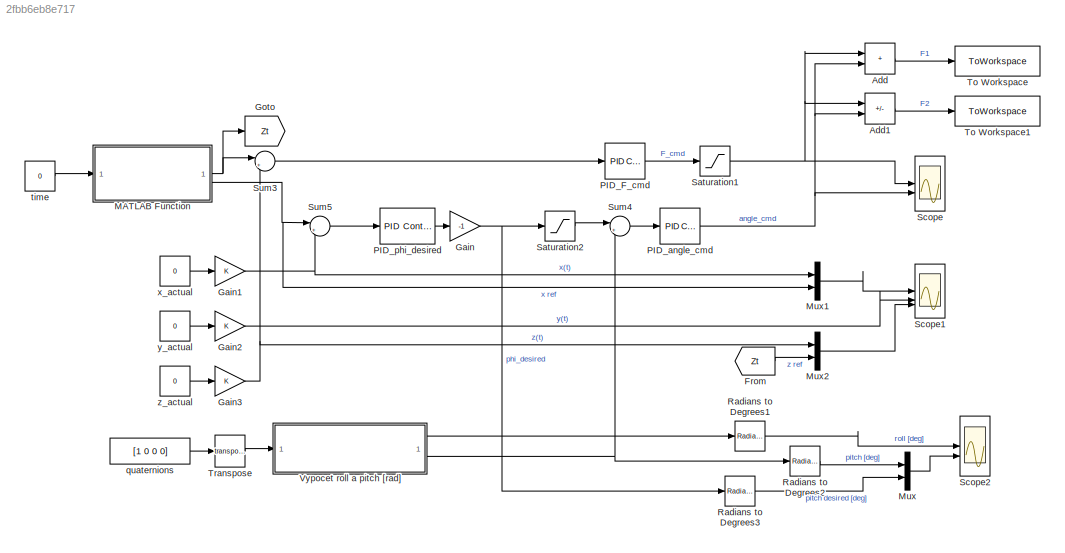
MODEL slx_2fbb6eb8e717
KIND model
CONFIG AbsTol = auto
CONFIG EnableMultiTasking = off
CONFIG FixedStep = 0.05
CONFIG MaxStep = auto
CONFIG MinStep = auto
CONFIG RelTol = 1e-3
CONFIG SampleTimeConstraint = Unconstrained
CONFIG SolverName = ode4
CONFIG StartTime = 0.0
CONFIG StopTime = 50
BLOCK [Sum] Add
  IconShape = rectangular
BLOCK [Sum] Add1
  IconShape = rectangular
  Inputs = +-
BLOCK [From] From
  GotoTag = Zt
BLOCK [Gain] Gain
  Gain = -1
BLOCK [Gain] Gain1
BLOCK [Gain] Gain2
BLOCK [Gain] Gain3
BLOCK [Goto] Goto
  GotoTag = Zt
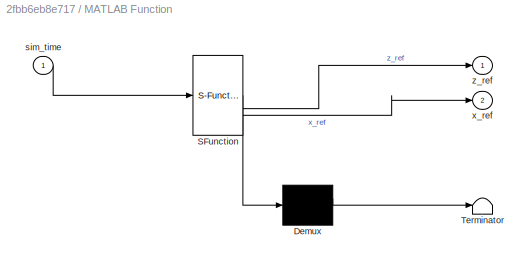
BLOCK [SubSystem] MATLAB Function
  ErrorFcn = Stateflow.Translate.translate
  PermitHierarchicalResolution = ExplicitOnly
  SFBlockType = MATLAB Function
  TreatAsAtomicUnit = on
BLOCK [Demux] MATLAB Function/ Demux 
  Outputs = 1
BLOCK [S-Function] MATLAB Function/ SFunction 
  EnableBusSupport = on
  FunctionName = sf_sfun
  PortCounts = [1 3]
  SFcnIsStateOwnerBlock = off
  SFunctionDeploymentMode = off
  Tag = Stateflow S-Function 1
BLOCK [Terminator] MATLAB Function/ Terminator 
BLOCK [Inport] MATLAB Function/sim_time
BLOCK [Outport] MATLAB Function/x_ref
  Port = 2
BLOCK [Outport] MATLAB Function/z_ref
BLOCK [Mux] Mux
  DisplayOption = bar
  Inputs = 2
BLOCK [Mux] Mux1
  DisplayOption = bar
  Inputs = 2
BLOCK [Mux] Mux2
  DisplayOption = bar
  Inputs = 2
BLOCK [Reference] PID_F_cmd  REF=slpidlib/PID Controller
  LibrarySourceBlock = simulink/Continuous/PID Controller
  SourceBlock = slpidlib/PID Controller
  SourceType = PID 1dof
BLOCK [Reference] PID_angle_cmd  REF=slpidlib/PID Controller
  LibrarySourceBlock = simulink/Continuous/PID Controller
  SourceBlock = slpidlib/PID Controller
  SourceType = PID 1dof
BLOCK [Reference] PID_phi_desired  REF=slpidlib/PID Controller
  LibrarySourceBlock = simulink/Continuous/PID Controller
  SourceBlock = slpidlib/PID Controller
  SourceType = PID 1dof
BLOCK [Reference] Radians to Degrees1  REF=simulink_extras/Transformations/Radians
to Degrees
  SourceBlock = simulink_extras/Transformations/Radians\nto Degrees
  SourceType = RadiansToDegrees
BLOCK [Reference] Radians to Degrees2  REF=simulink_extras/Transformations/Radians
to Degrees
  SourceBlock = simulink_extras/Transformations/Radians\nto Degrees
  SourceType = RadiansToDegrees
BLOCK [Reference] Radians to Degrees3  REF=simulink_extras/Transformations/Radians
to Degrees
  SourceBlock = simulink_extras/Transformations/Radians\nto Degrees
  SourceType = RadiansToDegrees
BLOCK [Saturate] Saturation1
  LowerLimit = 0
  UpperLimit = 20
BLOCK [Saturate] Saturation2
  LowerLimit = -pi/2
  UpperLimit = pi/2
BLOCK [Scope] Scope
  Floating = off
  NumInputPorts = 2
  ScopeSpecificationString = Simulink.scopes.TimeScopeBlockCfg('CurrentConfiguration', extmgr.ConfigurationSet(extmgr.Configuration('Core','General UI',true),extmgr.Configuration('Core','Source UI',true),extmgr.Configuration('Sources','WiredSimulink',true,'DataLoggingVariableName','ScopeData1'),extmgr.Configuration('Visuals','Time Domain',true,'SerializedDisplays',{struct('MinYLimReal','-8.92897','MaxYLimReal','23.21433','YLa...<+1658ch>
BLOCK [Scope] Scope1
  Floating = off
  NumInputPorts = 3
  ScopeSpecificationString = Simulink.scopes.TimeScopeBlockCfg('CurrentConfiguration', extmgr.ConfigurationSet(extmgr.Configuration('Core','General UI',true),extmgr.Configuration('Core','Source UI',true),extmgr.Configuration('Sources','WiredSimulink',true,'DataLoggingVariableName','ScopeData1'),extmgr.Configuration('Visuals','Time Domain',true,'SerializedDisplays',{struct('MinYLimReal','-7.52724','MaxYLimReal','17.74514','YLa...<+3380ch>
BLOCK [Scope] Scope2
  Floating = off
  NumInputPorts = 2
  ScopeSpecificationString = Simulink.scopes.TimeScopeBlockCfg('CurrentConfiguration', extmgr.ConfigurationSet(extmgr.Configuration('Core','General UI',true),extmgr.Configuration('Core','Source UI',true),extmgr.Configuration('Sources','WiredSimulink',true,'DataLoggingVariableName','ScopeData2'),extmgr.Configuration('Visuals','Time Domain',true,'SerializedDisplays',{struct('MinYLimReal','-140.53645','MaxYLimReal','102.00165','...<+1627ch>
BLOCK [Sum] Sum3
  Inputs = |+-
BLOCK [Sum] Sum4
  Inputs = |+-
BLOCK [Sum] Sum5
  Inputs = |+-
BLOCK [ToWorkspace] To Workspace
  MaxDataPoints = inf
  SampleTime = -1
  SaveFormat = Timeseries
  VariableName = F1
BLOCK [ToWorkspace] To Workspace1
  MaxDataPoints = inf
  SampleTime = -1
  SaveFormat = Timeseries
  VariableName = F2
BLOCK [Math] Transpose
  Operator = transpose
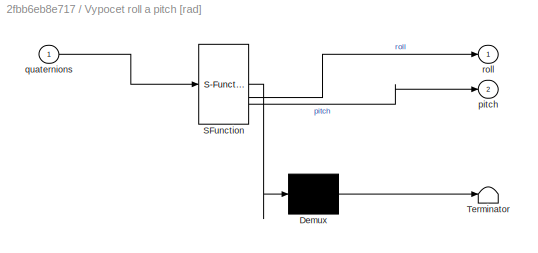
BLOCK [SubSystem] Vypocet roll a pitch [rad]
  ErrorFcn = Stateflow.Translate.translate
  PermitHierarchicalResolution = ExplicitOnly
  SFBlockType = MATLAB Function
  TreatAsAtomicUnit = on
BLOCK [Demux] Vypocet roll a pitch [rad]/ Demux 
  Outputs = 1
BLOCK [S-Function] Vypocet roll a pitch [rad]/ SFunction 
  EnableBusSupport = on
  FunctionName = sf_sfun
  PortCounts = [1 3]
  SFcnIsStateOwnerBlock = off
  SFunctionDeploymentMode = off
  Tag = Stateflow S-Function 2
BLOCK [Terminator] Vypocet roll a pitch [rad]/ Terminator 
BLOCK [Outport] Vypocet roll a pitch [rad]/pitch
  Port = 2
BLOCK [Inport] Vypocet roll a pitch [rad]/quaternions
BLOCK [Outport] Vypocet roll a pitch [rad]/roll
BLOCK [Constant] quaternions
  Value = [1 0 0 0]
BLOCK [Constant] time
  Value = 0
BLOCK [Constant] x_actual
  Value = 0
BLOCK [Constant] y_actual
  Value = 0
BLOCK [Constant] z_actual
  Value = 0
LINE Add1:1 -> To Workspace1:1
LINE Add:1 -> To Workspace:1
LINE From:1 -> Mux2:2
NET Gain1:1 -> Mux1:1, Sum5:2
LINE Gain2:1 -> Scope1:2
NET Gain3:1 -> Mux2:1, Sum3:2
NET Gain:1 -> Radians to Degrees3:1, Saturation2:1
NET MATLAB Function:1 -> Goto:1, Sum3:1
NET MATLAB Function:2 -> Mux1:2, Sum5:1
LINE Mux1:1 -> Scope1:1
LINE Mux2:1 -> Scope1:3
LINE Mux:1 -> Scope2:2
LINE PID_F_cmd:1 -> Saturation1:1
NET PID_angle_cmd:1 -> Add1:2, Add:2, Scope:2
LINE PID_phi_desired:1 -> Gain:1
LINE Radians to Degrees1:1 -> Scope2:1
LINE Radians to Degrees2:1 -> Mux:1
LINE Radians to Degrees3:1 -> Mux:2
NET Saturation1:1 -> Add1:1, Add:1, Scope:1
LINE Saturation2:1 -> Sum4:1
LINE Sum3:1 -> PID_F_cmd:1
LINE Sum4:1 -> PID_angle_cmd:1
LINE Sum5:1 -> PID_phi_desired:1
LINE Transpose:1 -> Vypocet roll a pitch [rad]:1
LINE Vypocet roll a pitch [rad]:1 -> Radians to Degrees1:1
NET Vypocet roll a pitch [rad]:2 -> Radians to Degrees2:1, Sum4:2
LINE quaternions:1 -> Transpose:1
LINE time:1 -> MATLAB Function:1
LINE x_actual:1 -> Gain1:1
LINE y_actual:1 -> Gain2:1
LINE z_actual:1 -> Gain3:1
note: NET lines group one-source signal fan-out (src -> all destinations, sorted); 1:1 wires keep LINE
CHART Vypocet roll a pitch [rad] states=1 transitions=1
  STATE_LABEL 'eML_blk_kernel()'
  STATE_LABEL "SCRIPT:\nfunction [roll, pitch] = roll_pitch_calculation(quaternions)\n% quaterniony z Python je v poradi [w, x, y, z]\n% quat2eul poziva na vstupu poradi [w, x, y, z]\nradians = quat2eul(quaternions, 'xyz'); % pouzivam poradi XYZ\n% roll = kolem osy x, pitch = kolem osy y\nroll = radians(1);\npitch = radians(2);\nend"
CHART MATLAB Function states=1 transitions=1
  STATE_LABEL 'eML_blk_kernel()'
  STATE_LABEL 'SCRIPT:\nfunction [z_ref, x_ref] = fcn(sim_time)\nif sim_time < 10\n    z_ref = 8;\n    x_ref = 0;\nelseif sim_time < 20\n    z_ref = 15;\n    x_ref = 10;\nelseif sim_time < 25\n    z_ref = 8;\n    x_ref = 10;\nelseif sim_time < 30\n    z_ref = 10;\n    x_ref = -5;\nelseif sim_time < 40\n    z_ref = 12;\n    x_ref = -5;\nelse\n    x_ref = 0;\n    z_ref = 10;\nend\n'
CHART  states=0 transitions=0
CHART  states=0 transitions=0
